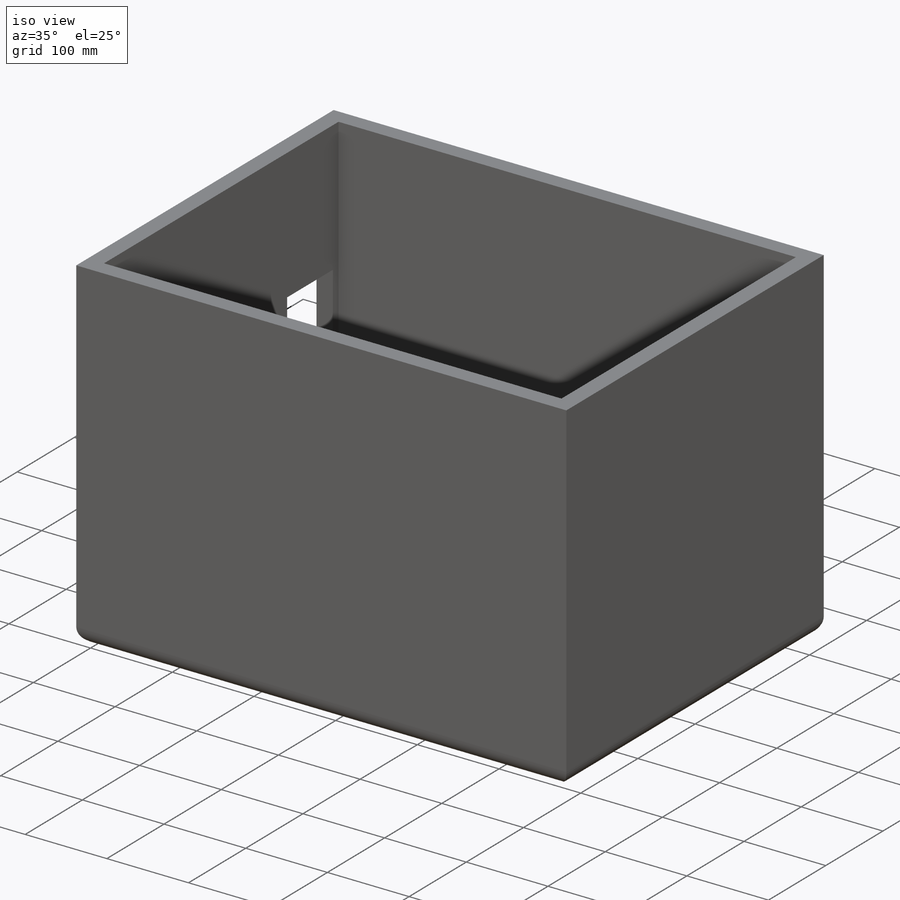
[diagram: iso view]
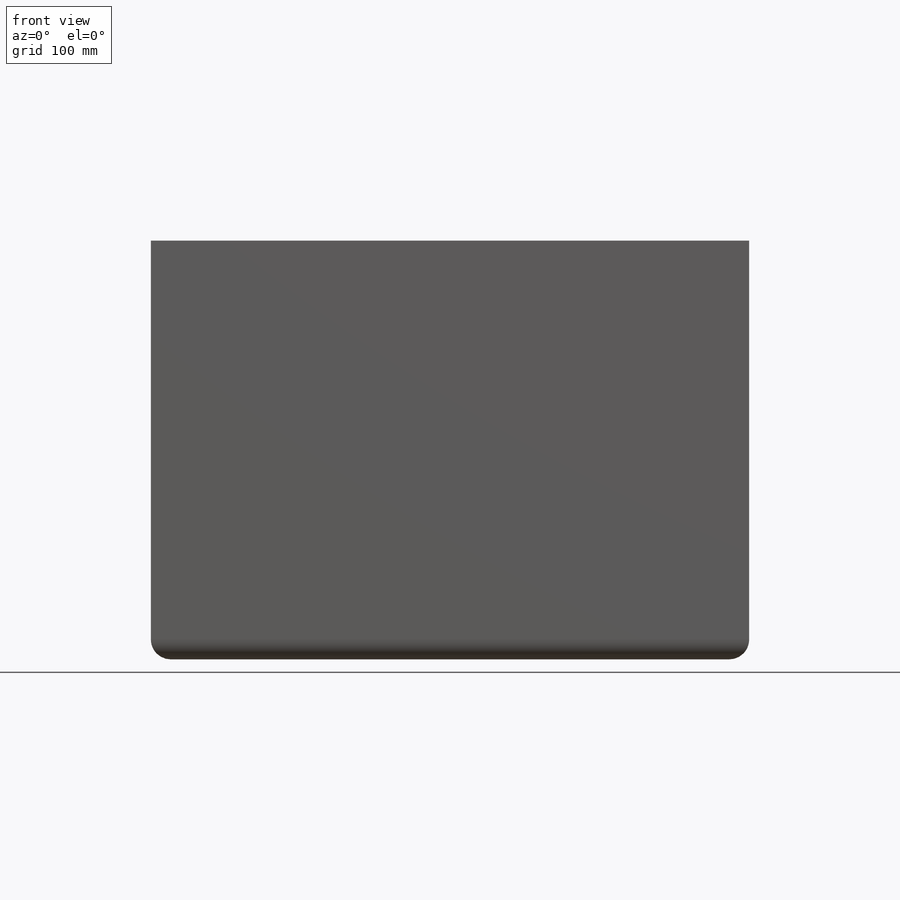
[diagram: front view]
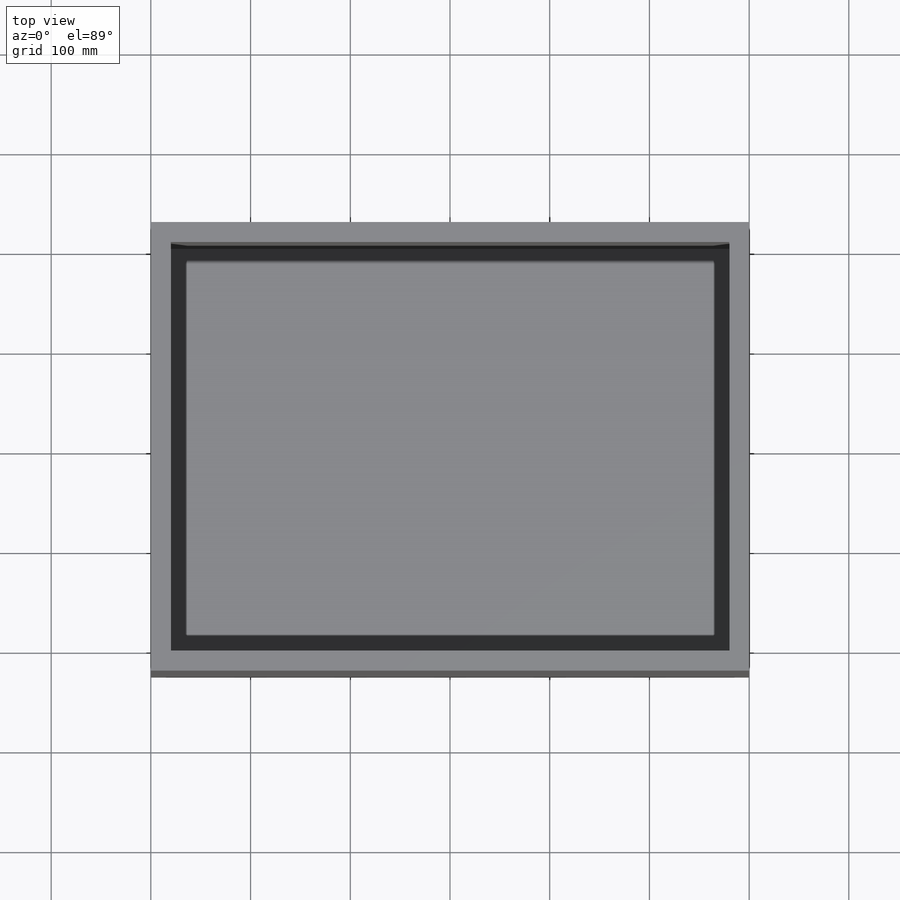
[diagram: top view]
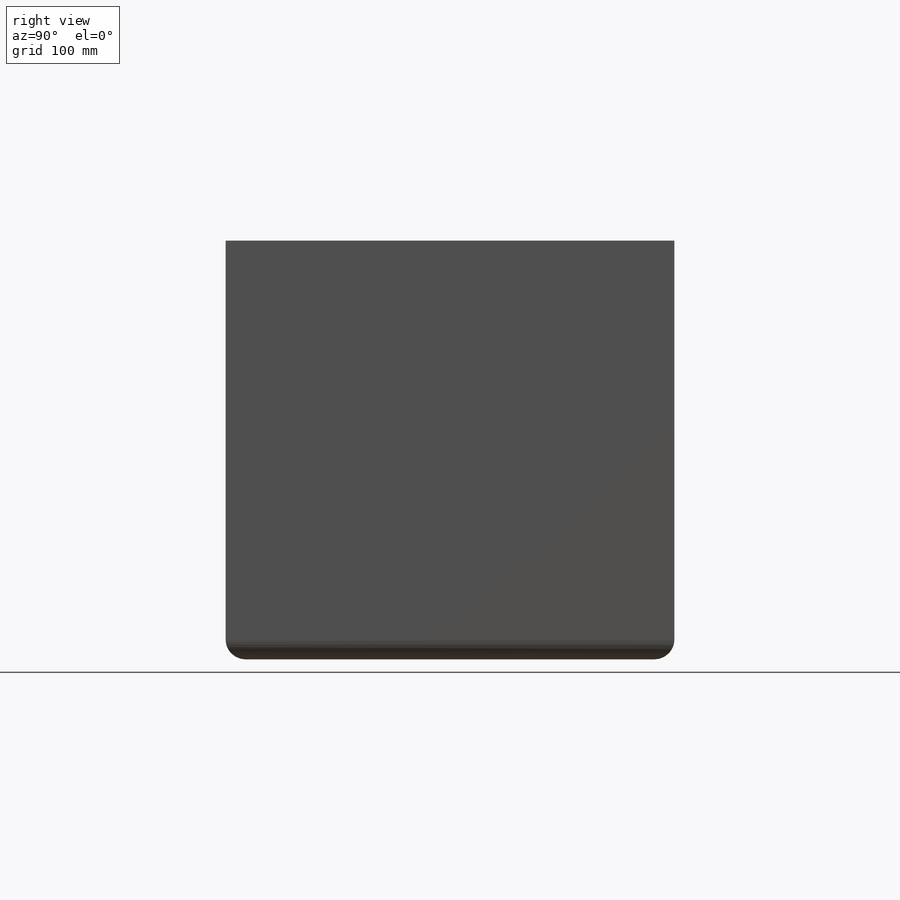
[diagram: right view]
SOLIDWORKS PART (.sldprt)
format: sldprt  version: not decoded by parser v0  size: 211,456 bytes
history: native  units: mm
features: sketch x5, extrude x3, cut_extrude x2, material x1, fillet x1 (+13 scaffold rows collapsed)
feature tree (25):
  scaffold x13  (default folders/planes/origin — collapsed)
  material  "Material <not specified>"
  sketch  "Sketch1"  dims[D1=560.0mm D2=410.0mm D3=20.0mm]
  extrude  "Boss-Extrude1"  Depth=400mm
  sketch  "Sketch2"
  extrude  "Boss-Extrude2"  Depth=20mm
  sketch  "Sketch4"  dims[D1=140.0mm D2=10.0mm]
  extrude  "Boss-Extrude4"  Depth=350mm
  sketch  "Sketch5"
  cut_extrude  "Cut-Extrude1"  Depth=50mm
  fillet  "Fillet1"  Radius=20mm
  sketch  "Sketch8"  dims[D1=30.0mm D2=160.0mm D3=80.0mm D4=80.0mm D5=80.0mm D6=30.0mm D7=160.0mm]
  cut_extrude  "Cut-Extrude3"  [1 undecoded]
decode coverage: 8 of 11 modeling features carry decoded parameters
note: 1 parameter value undecoded
note: suppression state not decoded; provenance and decode notes live in map.json
